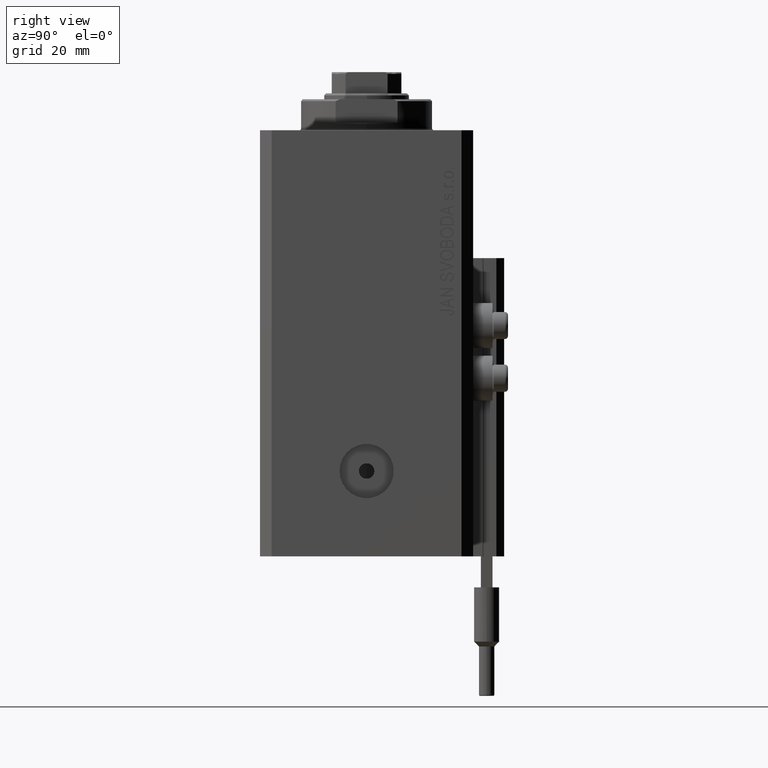
[diagram: clean part render]
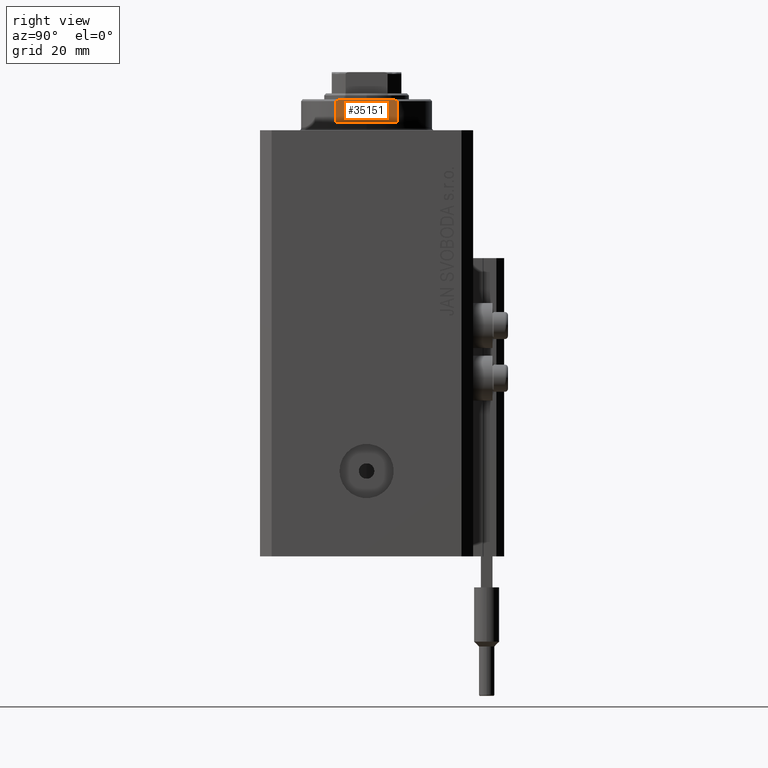
[diagram: same view with one face highlighted and labeled with its STEP entity id]
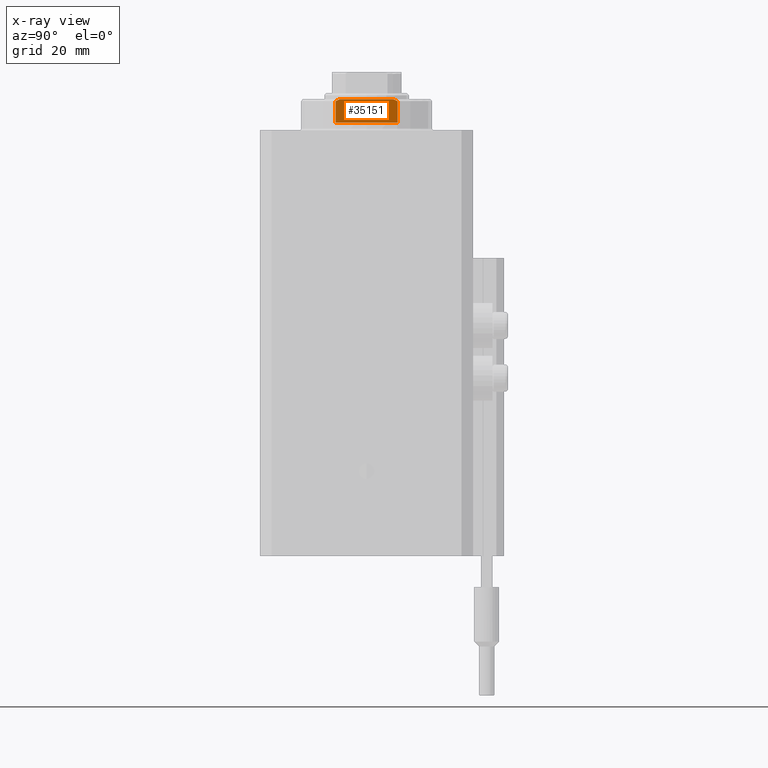
[diagram: x-ray of the same camera — body ghosted, the highlighted face saturated]
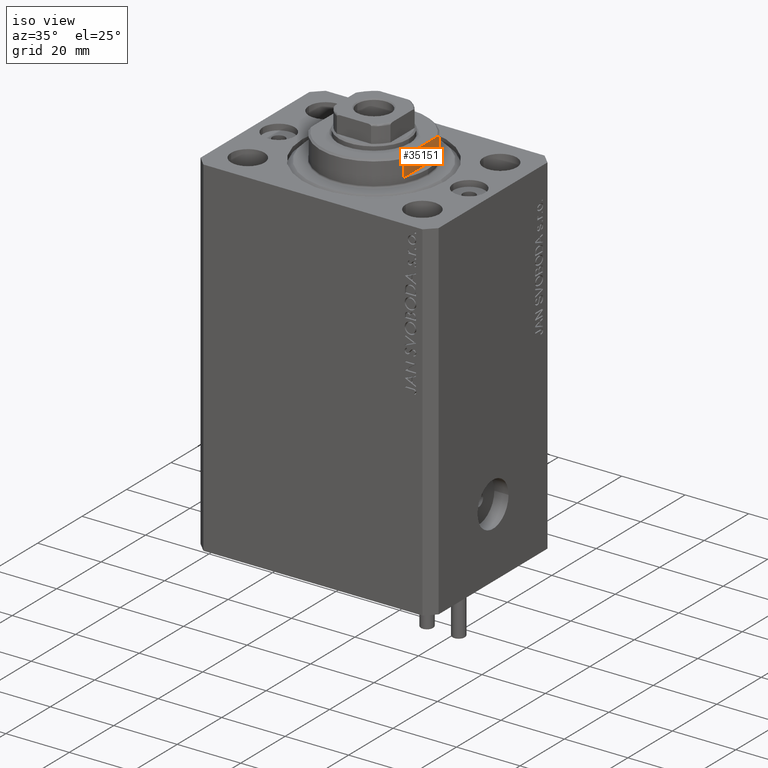
[diagram: same view with one face highlighted and labeled with its STEP entity id]
A machine part, right view. The second image highlights one B-rep face of the part: STEP entity #35151.
The next image is the same camera in x-ray: the body ghosted, the highlighted face saturated — about 0% of this face is hidden behind the body in this view.
A second angle (iso view) of the same face is appended — the face is thin or edge-on in the first view.
In plain terms, the highlighted planar face has unit normal (-1, 0, 0).
Its self-contained STEP definition (entity closure, byte-faithful):
#584 = VERTEX_POINT ( 'NONE', #8330 ) ;
#1283 = FACE_OUTER_BOUND ( 'NONE', #25629, .T. ) ;
#2228 = DIRECTION ( 'NONE',  ( 0.000000000000000000, 0.000000000000000000, -1.000000000000000000 ) ) ;
#2747 = LINE ( 'NONE', #44030, #32094 ) ;
#5994 = EDGE_CURVE ( 'NONE', #26757, #584, #29944, .T. ) ;
#6241 = VERTEX_POINT ( 'NONE', #39652 ) ;
#6271 = EDGE_CURVE ( 'NONE', #10134, #584, #2747, .T. ) ;
#6449 = CARTESIAN_POINT ( 'NONE',  ( -15.00000000000000000, -7.629305121525810307, -7.674444648693742543 ) ) ;
#8330 = CARTESIAN_POINT ( 'NONE',  ( -15.00000000000000000, -8.000000000000001776, -7.500000000000007105 ) ) ;
#9170 = EDGE_CURVE ( 'NONE', #10513, #26757, #21325, .T. ) ;
#9328 = ORIENTED_EDGE ( 'NONE', *, *, #33261, .F. ) ;
#9983 = CARTESIAN_POINT ( 'NONE',  ( -15.00000000000000000, 8.000000000000001776, -7.500000000000007105 ) ) ;
#10134 = VERTEX_POINT ( 'NONE', #11406 ) ;
#10513 = VERTEX_POINT ( 'NONE', #45800 ) ;
#11007 = ORIENTED_EDGE ( 'NONE', *, *, #9170, .T. ) ;
#11406 = CARTESIAN_POINT ( 'NONE',  ( -14.99999999999999645, -8.000000000000003553, -2.000000000000000000 ) ) ;
#12987 = CARTESIAN_POINT ( 'NONE',  ( -14.99999999999999645, -6.873863542433765517, -8.000000000000000000 ) ) ;
#13630 = CARTESIAN_POINT ( 'NONE',  ( -15.00000000000000000, 7.253126193285931222, -7.842000017654665811 ) ) ;
#14155 = VERTEX_POINT ( 'NONE', #21733 ) ;
#15720 = DIRECTION ( 'NONE',  ( -0.000000000000000000, -1.000000000000000000, -0.000000000000000000 ) ) ;
#17037 = CARTESIAN_POINT ( 'NONE',  ( -14.99999999999999645, 6.873863542433765517, -8.000000000000000000 ) ) ;
#17703 = EDGE_CURVE ( 'NONE', #14155, #10134, #30061, .T. ) ;
#17863 = VECTOR ( 'NONE', #15720, 1000.000000000000000 ) ;
#17883 = CARTESIAN_POINT ( 'NONE',  ( -15.00000000000000000, -8.000000000000001776, -7.500000000000007105 ) ) ;
#18367 = CARTESIAN_POINT ( 'NONE',  ( -14.99999999999999645, -6.873863542433765517, -8.000000000000000000 ) ) ;
#19757 = ORIENTED_EDGE ( 'NONE', *, *, #6271, .F. ) ;
#20699 = CARTESIAN_POINT ( 'NONE',  ( -15.00000000000000000, 7.628315461082482152, -7.674910371255308839 ) ) ;
#21190 = CARTESIAN_POINT ( 'NONE',  ( -15.00000000000000000, -42.42640687119285303, -2.000000000000000000 ) ) ;
#21325 = LINE ( 'NONE', #36599, #27680 ) ;
#21565 = DIRECTION ( 'NONE',  ( -0.000000000000000000, -1.000000000000000000, -0.000000000000000000 ) ) ;
#21733 = CARTESIAN_POINT ( 'NONE',  ( -14.99999999999999645, 8.000000000000003553, -2.000000000000000000 ) ) ;
#22124 = LINE ( 'NONE', #35949, #23748 ) ;
#23748 = VECTOR ( 'NONE', #36679, 1000.000000000000000 ) ;
#25629 = EDGE_LOOP ( 'NONE', ( #39261, #11007, #39984, #19757, #46939, #9328 ) ) ;
#26262 = B_SPLINE_CURVE_WITH_KNOTS ( 'NONE', 3,
 ( #9983, #20699, #13630, #17037 ),
 .UNSPECIFIED., .F., .F.,
 ( 4, 4 ),
 ( 0.03336039268697044147, 0.03459498301323850333 ),
 .UNSPECIFIED. ) ;
#26757 = VERTEX_POINT ( 'NONE', #12987 ) ;
#27680 = VECTOR ( 'NONE', #21565, 1000.000000000000000 ) ;
#27892 = EDGE_CURVE ( 'NONE', #6241, #10513, #26262, .T. ) ;
#29944 = B_SPLINE_CURVE_WITH_KNOTS ( 'NONE', 3,
 ( #18367, #37047, #6449, #17883 ),
 .UNSPECIFIED., .F., .F.,
 ( 4, 4 ),
 ( 0.04875332532859059931, 0.04998905627745663105 ),
 .UNSPECIFIED. ) ;
#30061 = LINE ( 'NONE', #34171, #17863 ) ;
#30917 = PLANE ( 'NONE',  #44709 ) ;
#32094 = VECTOR ( 'NONE', #47191, 1000.000000000000000 ) ;
#33261 = EDGE_CURVE ( 'NONE', #6241, #14155, #22124, .T. ) ;
#34171 = CARTESIAN_POINT ( 'NONE',  ( -15.00000000000000000, -42.42640687119285303, -2.000000000000000000 ) ) ;
#35151 = ADVANCED_FACE ( 'NONE', ( #1283 ), #30917, .F. ) ;
#35949 = CARTESIAN_POINT ( 'NONE',  ( -15.00000000000000000, 8.000000000000001776, -8.000000000000000000 ) ) ;
#36599 = CARTESIAN_POINT ( 'NONE',  ( -15.00000000000000000, -42.42640687119285303, -8.000000000000000000 ) ) ;
#36679 = DIRECTION ( 'NONE',  ( -0.000000000000000000, -0.000000000000000000, 1.000000000000000000 ) ) ;
#37047 = CARTESIAN_POINT ( 'NONE',  ( -15.00000000000000000, -7.254193676168128491, -7.841555306644508505 ) ) ;
#39261 = ORIENTED_EDGE ( 'NONE', *, *, #27892, .T. ) ;
#39652 = CARTESIAN_POINT ( 'NONE',  ( -15.00000000000000000, 8.000000000000001776, -7.500000000000007105 ) ) ;
#39984 = ORIENTED_EDGE ( 'NONE', *, *, #5994, .T. ) ;
#42801 = DIRECTION ( 'NONE',  ( 1.000000000000000000, 0.000000000000000000, 0.000000000000000000 ) ) ;
#44030 = CARTESIAN_POINT ( 'NONE',  ( -15.00000000000000000, -8.000000000000001776, -8.000000000000000000 ) ) ;
#44709 = AXIS2_PLACEMENT_3D ( 'NONE', #21190, #42801, #2228 ) ;
#45800 = CARTESIAN_POINT ( 'NONE',  ( -14.99999999999999645, 6.873863542433765517, -8.000000000000000000 ) ) ;
#46939 = ORIENTED_EDGE ( 'NONE', *, *, #17703, .F. ) ;
#47191 = DIRECTION ( 'NONE',  ( 0.000000000000000000, 0.000000000000000000, -1.000000000000000000 ) ) ;